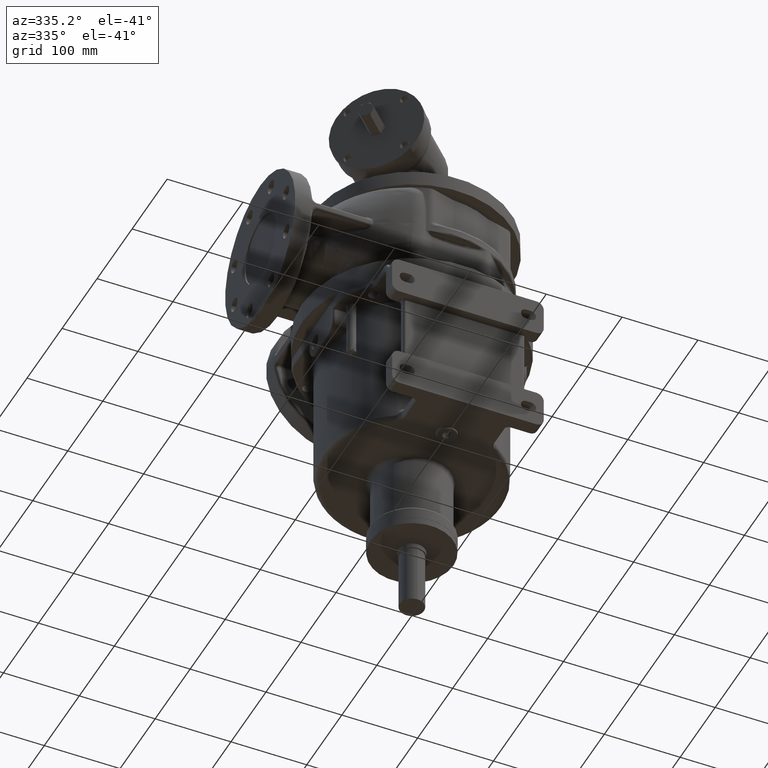
[diagram: clean part render]
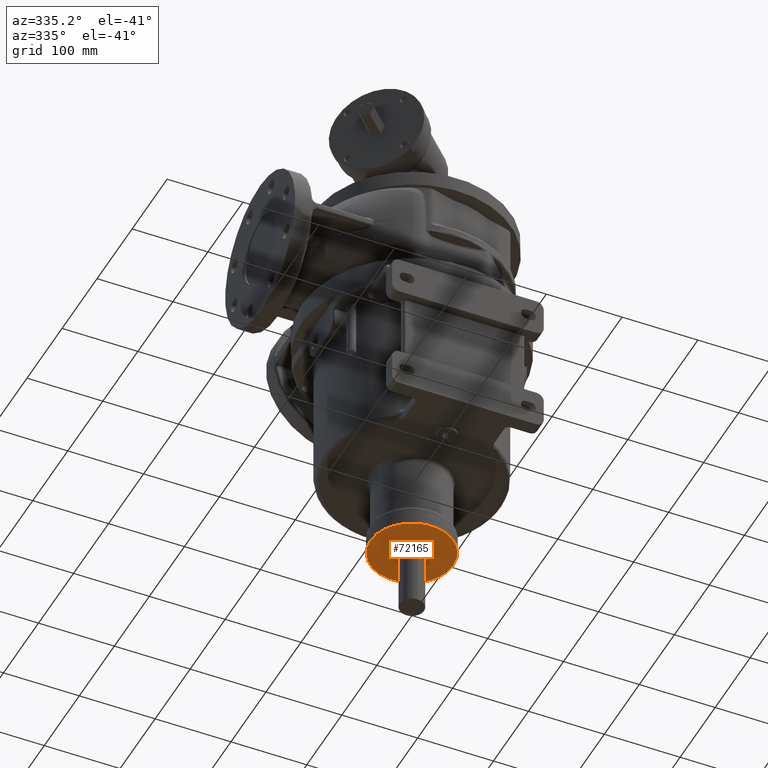
[diagram: same view with one face highlighted and labeled with its STEP entity id]
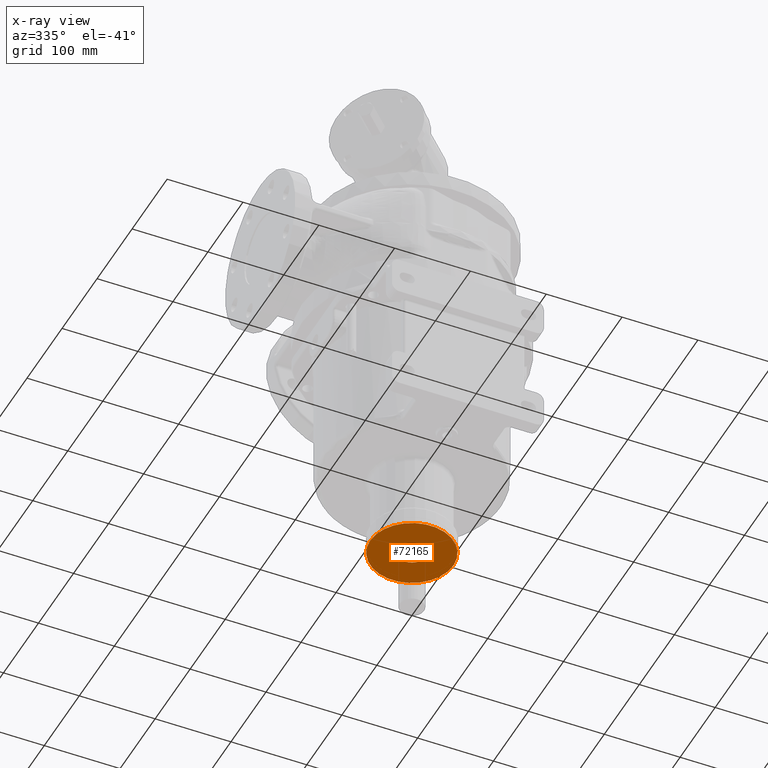
[diagram: x-ray of the same camera — body ghosted, the highlighted face saturated]
A machine part, auxiliary view. The second image highlights one B-rep face of the part: STEP entity #72165.
The next image is the same camera in x-ray: the body ghosted, the highlighted face saturated — about 0% of this face is hidden behind the body in this view.
In plain terms, the highlighted planar face has unit normal (0, 0, -1).
Its self-contained STEP definition (entity closure, byte-faithful):
#19235=CARTESIAN_POINT('',(0.E0,-3.721681525757E-14,-3.13E2));
#19236=DIRECTION('',(0.E0,0.E0,-1.E0));
#19237=DIRECTION('',(-1.E0,0.E0,0.E0));
#19238=AXIS2_PLACEMENT_3D('',#19235,#19236,#19237);
#19244=CARTESIAN_POINT('',(0.E0,-3.721681525757E-14,-3.13E2));
#19245=DIRECTION('',(0.E0,0.E0,1.E0));
#19246=DIRECTION('',(-1.E0,0.E0,0.E0));
#19247=AXIS2_PLACEMENT_3D('',#19244,#19245,#19246);
#19253=CARTESIAN_POINT('',(0.E0,-1.398526547775E-14,-3.13E2));
#19254=DIRECTION('',(0.E0,0.E0,1.E0));
#19255=DIRECTION('',(0.E0,1.E0,0.E0));
#19256=AXIS2_PLACEMENT_3D('',#19253,#19254,#19255);
#19258=CARTESIAN_POINT('',(0.E0,-1.398526547775E-14,-3.13E2));
#19259=DIRECTION('',(0.E0,0.E0,1.E0));
#19260=DIRECTION('',(0.E0,-1.E0,0.E0));
#19261=AXIS2_PLACEMENT_3D('',#19258,#19259,#19260);
#20708=CARTESIAN_POINT('',(-5.475E1,-3.721681525757E-14,-3.13E2));
#20709=CARTESIAN_POINT('',(5.475E1,-3.051187403224E-14,-3.13E2));
#20710=VERTEX_POINT('',#20708);
#20711=VERTEX_POINT('',#20709);
#20735=CARTESIAN_POINT('',(0.E0,1.75E1,-3.13E2));
#20736=CARTESIAN_POINT('',(0.E0,-1.75E1,-3.13E2));
#20737=VERTEX_POINT('',#20735);
#20738=VERTEX_POINT('',#20736);
#72150=CARTESIAN_POINT('',(0.E0,-3.721681525757E-14,-3.13E2));
#72151=DIRECTION('',(0.E0,0.E0,-1.E0));
#72152=DIRECTION('',(1.E0,0.E0,0.E0));
#72153=AXIS2_PLACEMENT_3D('',#72150,#72151,#72152);
#72154=PLANE('',#72153);
#72155=ORIENTED_EDGE('',*,*,#72130,.F.);
#72156=ORIENTED_EDGE('',*,*,#72144,.T.);
#72157=EDGE_LOOP('',(#72155,#72156));
#72158=FACE_OUTER_BOUND('',#72157,.F.);
#72160=ORIENTED_EDGE('',*,*,#72159,.F.);
#72162=ORIENTED_EDGE('',*,*,#72161,.F.);
#72163=EDGE_LOOP('',(#72160,#72162));
#72164=FACE_BOUND('',#72163,.F.);
#72165=ADVANCED_FACE('',(#72158,#72164),#72154,.T.);
#19239=CIRCLE('',#19238,5.475E1);
#19248=CIRCLE('',#19247,5.475E1);
#19257=CIRCLE('',#19256,1.75E1);
#19262=CIRCLE('',#19261,1.75E1);
#72130=EDGE_CURVE('',#20710,#20711,#19239,.T.);
#72144=EDGE_CURVE('',#20710,#20711,#19248,.T.);
#72159=EDGE_CURVE('',#20737,#20738,#19257,.T.);
#72161=EDGE_CURVE('',#20738,#20737,#19262,.T.);